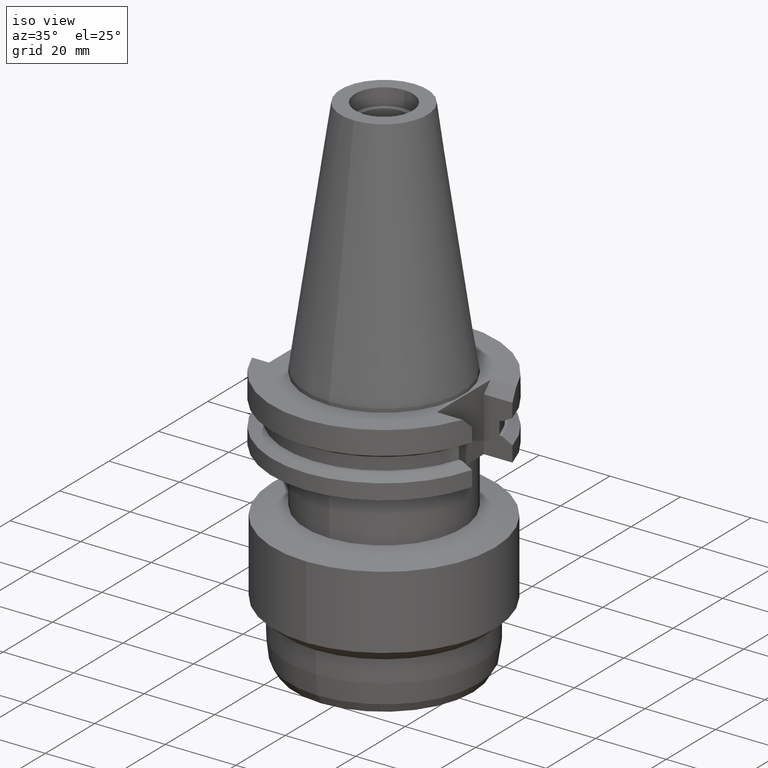
[diagram: clean part render]
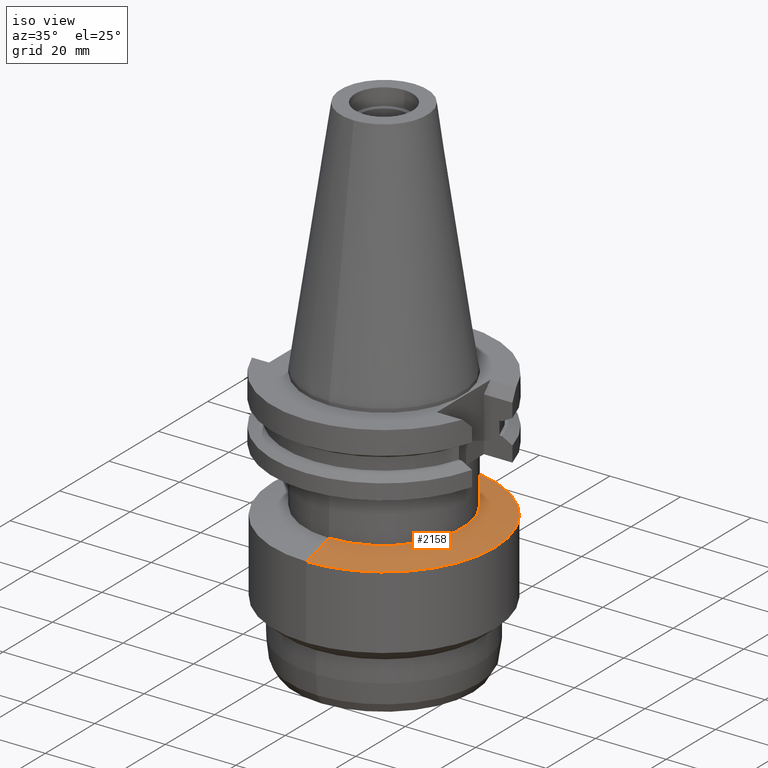
[diagram: same view with one face highlighted and labeled with its STEP entity id]
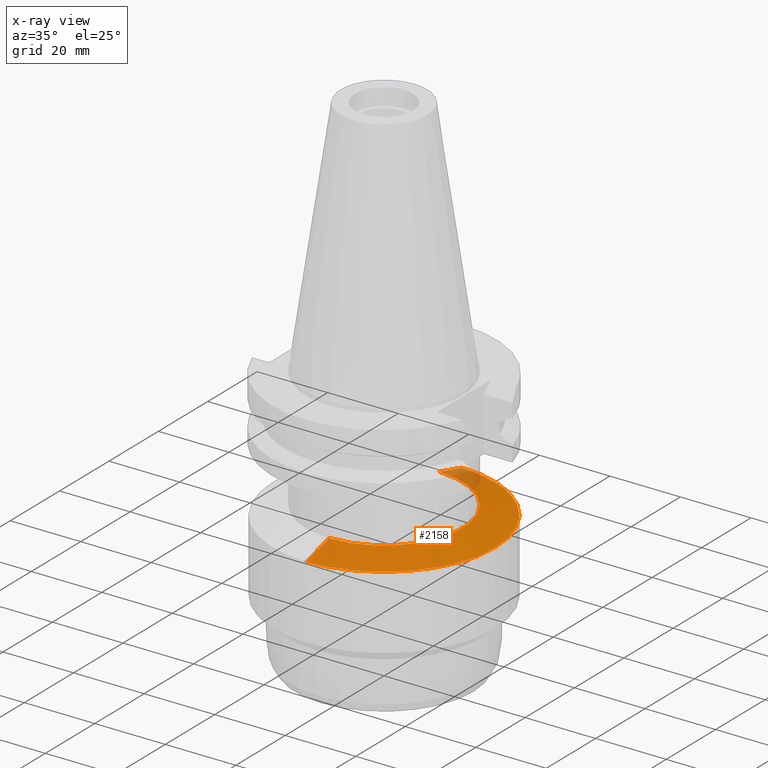
[diagram: x-ray of the same camera — body ghosted, the highlighted face saturated]
A machine part, iso view. The second image highlights one B-rep face of the part: STEP entity #2158.
The next image is the same camera in x-ray: the body ghosted, the highlighted face saturated — about 6% of this face is hidden behind the body in this view.
In plain terms, the highlighted conical surface has half-angle 75 deg.
Its self-contained STEP definition (entity closure, byte-faithful):
#862=DIRECTION('',(0.E0,9.659258262890E-1,-2.588190451027E-1));
#863=VECTOR('',#862,9.550422764284E0);
#864=CARTESIAN_POINT('',(0.E0,2.2225E1,-3.5E1));
#865=LINE('',#864,#863);
#869=CARTESIAN_POINT('',(0.E0,0.E0,-3.747183130018E1));
#870=DIRECTION('',(0.E0,0.E0,-1.E0));
#871=DIRECTION('',(0.E0,1.E0,0.E0));
#872=AXIS2_PLACEMENT_3D('',#869,#870,#871);
#877=CARTESIAN_POINT('',(0.E0,0.E0,-3.5E1));
#878=DIRECTION('',(0.E0,0.E0,1.E0));
#879=DIRECTION('',(0.E0,-1.E0,0.E0));
#880=AXIS2_PLACEMENT_3D('',#877,#878,#879);
#893=DIRECTION('',(0.E0,-9.659258262890E-1,-2.588190451027E-1));
#894=VECTOR('',#893,9.550422764284E0);
#895=CARTESIAN_POINT('',(0.E0,-2.2225E1,-3.5E1));
#896=LINE('',#895,#894);
#1370=CARTESIAN_POINT('',(0.E0,3.145E1,-3.747183130018E1));
#1371=VERTEX_POINT('',#1370);
#1372=CARTESIAN_POINT('',(0.E0,-3.145E1,-3.747183130018E1));
#1373=VERTEX_POINT('',#1372);
#1374=CARTESIAN_POINT('',(0.E0,2.2225E1,-3.5E1));
#1375=VERTEX_POINT('',#1374);
#1376=CARTESIAN_POINT('',(0.E0,-2.2225E1,-3.5E1));
#1377=VERTEX_POINT('',#1376);
#2144=CARTESIAN_POINT('',(0.E0,0.E0,-3.623591565009E1));
#2145=DIRECTION('',(0.E0,0.E0,-1.E0));
#2146=DIRECTION('',(0.E0,-1.E0,0.E0));
#2147=AXIS2_PLACEMENT_3D('',#2144,#2145,#2146);
#2148=CONICAL_SURFACE('',#2147,2.68375E1,7.5E1);
#2150=ORIENTED_EDGE('',*,*,#2149,.T.);
#2152=ORIENTED_EDGE('',*,*,#2151,.T.);
#2154=ORIENTED_EDGE('',*,*,#2153,.F.);
#2155=ORIENTED_EDGE('',*,*,#2137,.T.);
#2156=EDGE_LOOP('',(#2150,#2152,#2154,#2155));
#2157=FACE_OUTER_BOUND('',#2156,.F.);
#873=CIRCLE('',#872,3.145E1);
#881=CIRCLE('',#880,2.2225E1);
#2137=EDGE_CURVE('',#1377,#1375,#881,.T.);
#2149=EDGE_CURVE('',#1375,#1371,#865,.T.);
#2151=EDGE_CURVE('',#1371,#1373,#873,.T.);
#2153=EDGE_CURVE('',#1377,#1373,#896,.T.);
#2158=ADVANCED_FACE('',(#2157),#2148,.T.);